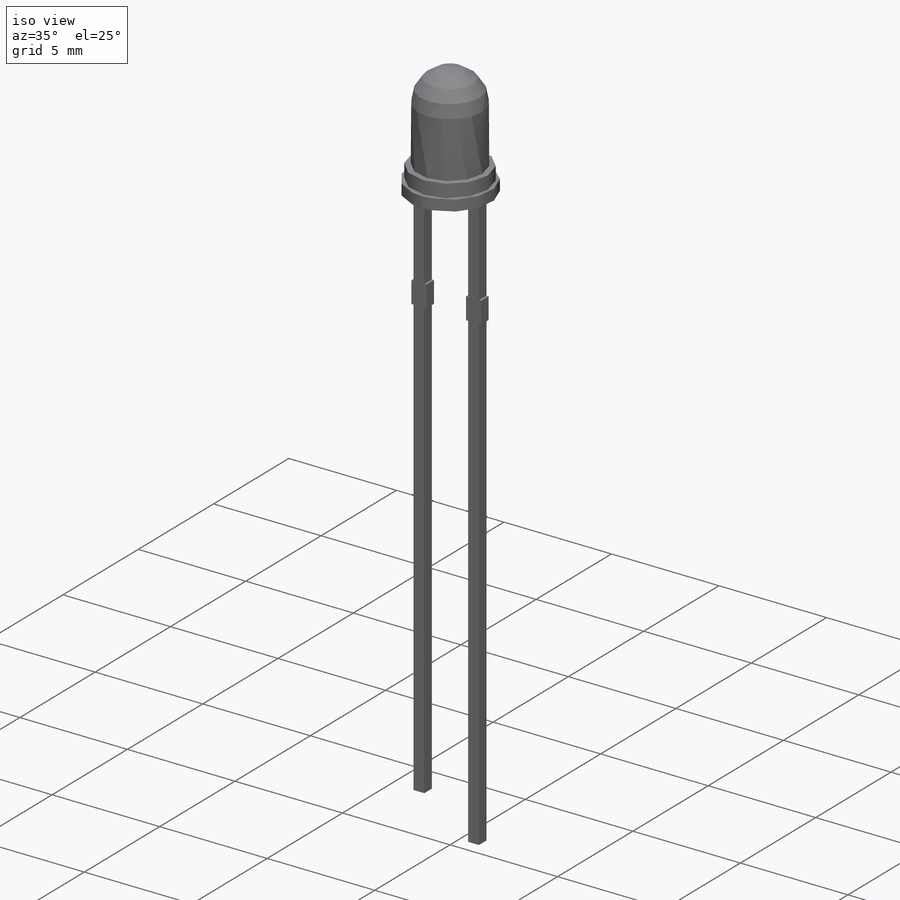
[diagram: iso view]
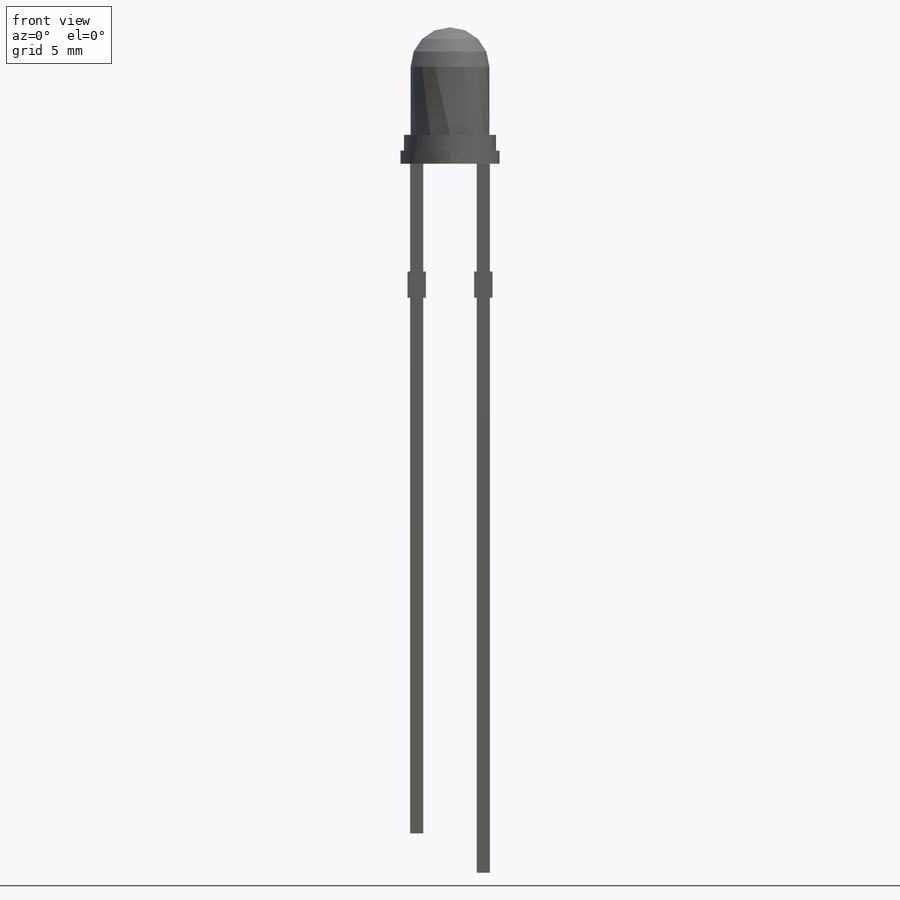
[diagram: front view]
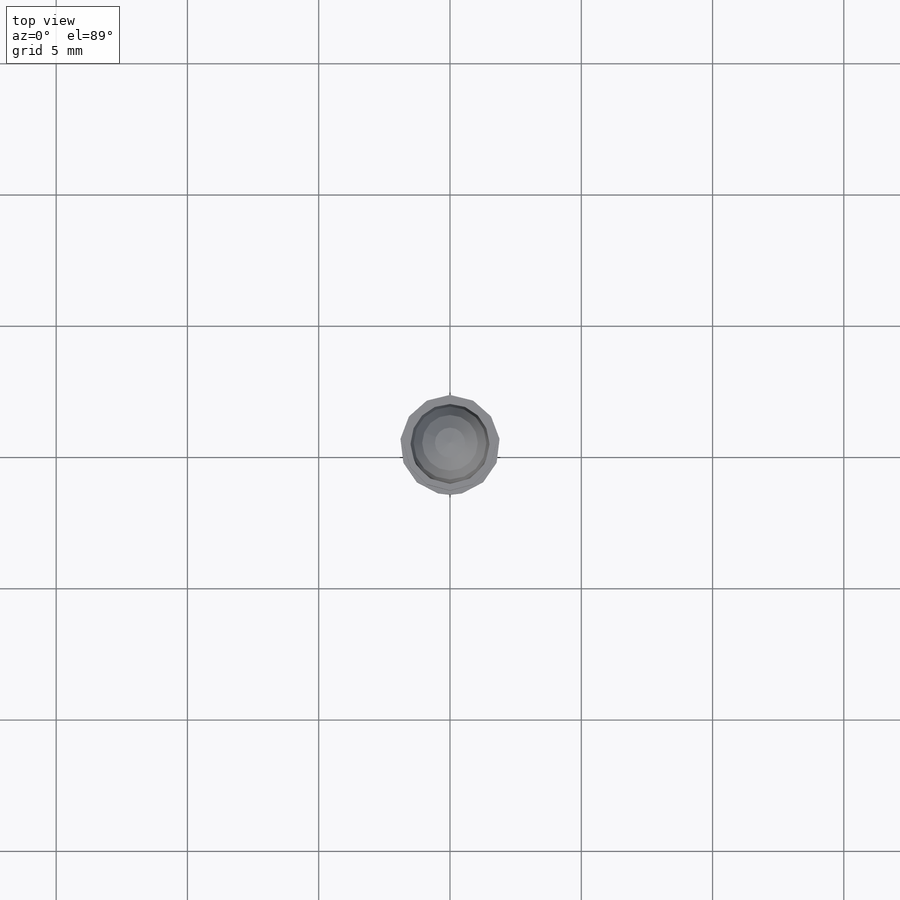
[diagram: top view]
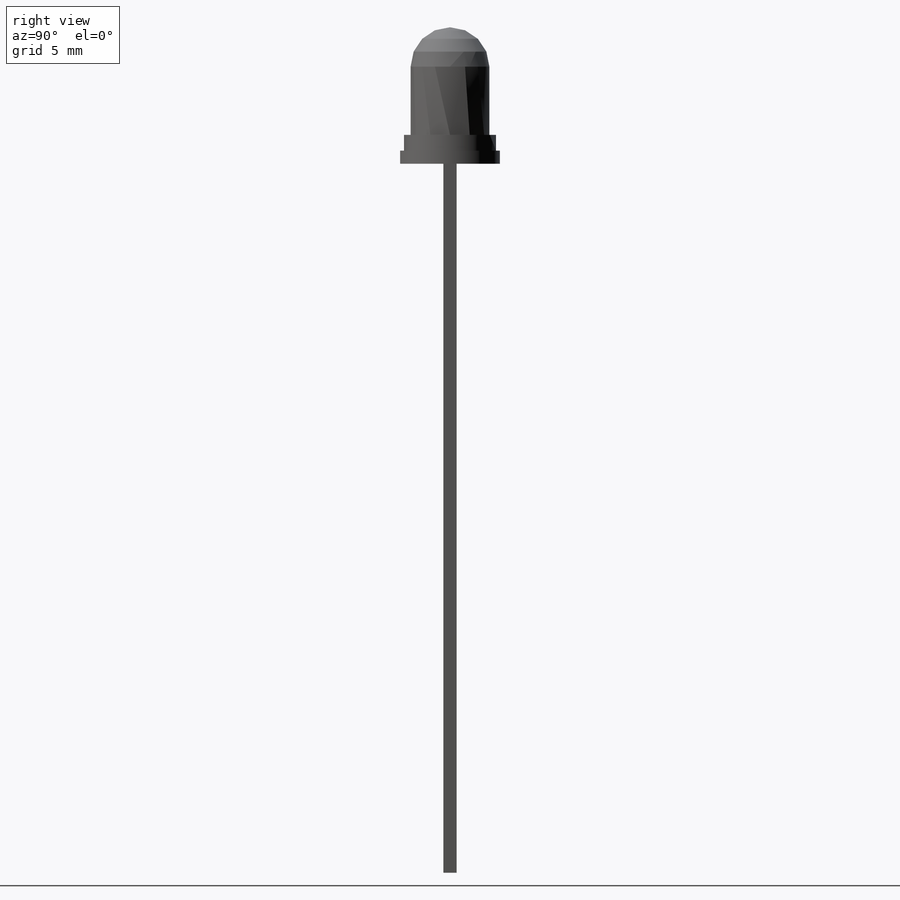
[diagram: right view]
SOLIDWORKS PART (.sldprt)
format: sldprt  version: not decoded by parser v0  size: 674,304 bytes
history: native  units: mm
features: sketch x5, extrude x3, material x1, revolve x1, cut_extrude x1 (+12 scaffold rows collapsed)
feature tree (23):
  scaffold x12  (default folders/planes/origin — collapsed)
  material  "Material <not specified>"
  sketch  "Sketch2"  dims[D1=3.5mm D2=3.8mm]
  extrude  "Extrude2"  Depth=0.5mm
  extrude  "Extrude3"  [1 undecoded]
  sketch  "Sketch2<3>"  dims[D1=1.1mm]
  sketch  "Sketch3"  dims[D1=1.5mm D2=5.2mm D3=27.0mm D4=1.5mm D5=0.5mm D6=2.54mm D7=1.0mm D8=0.7mm D9=9.3mm]
  revolve  "Revolve1"  Angle=360deg
  extrude  "Extrude4"  [1 undecoded]
  sketch  "Sketch3<3>"  dims[D1=0.5mm]
  sketch  "Sketch5"
  cut_extrude  "Cut-Extrude1"  Depth=0.01mm
decode coverage: 7 of 10 modeling features carry decoded parameters
note: 2 parameter values undecoded
note: suppression state not decoded; provenance and decode notes live in map.json
